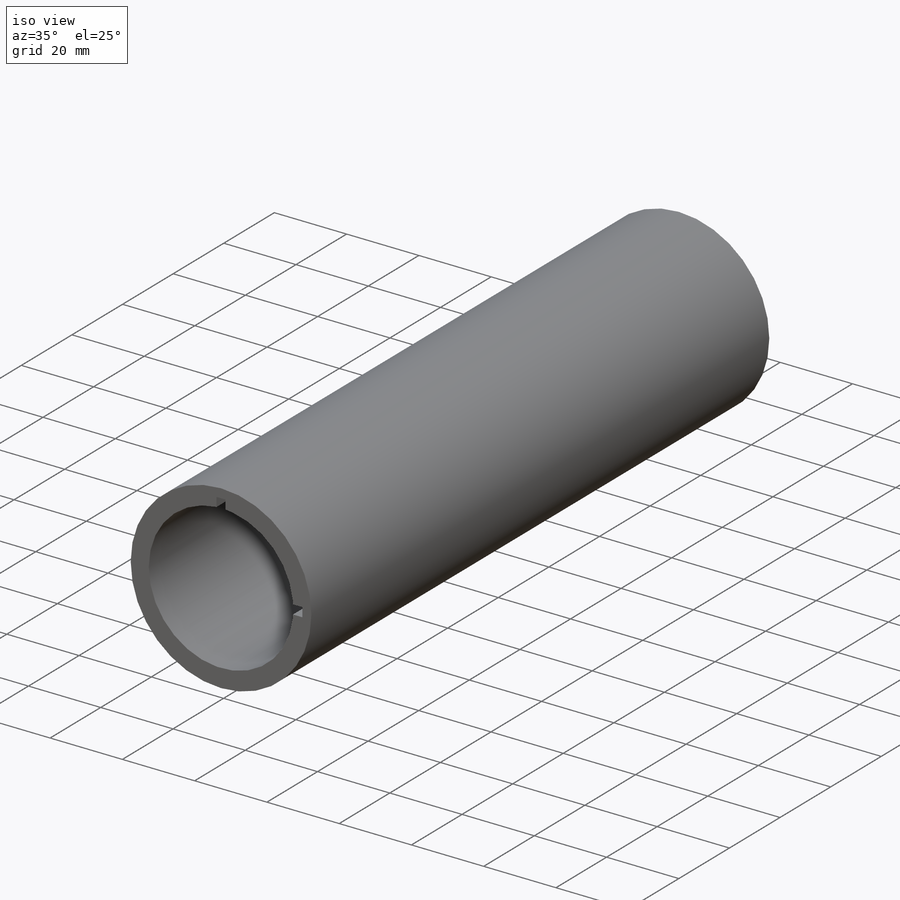
[diagram: iso view]
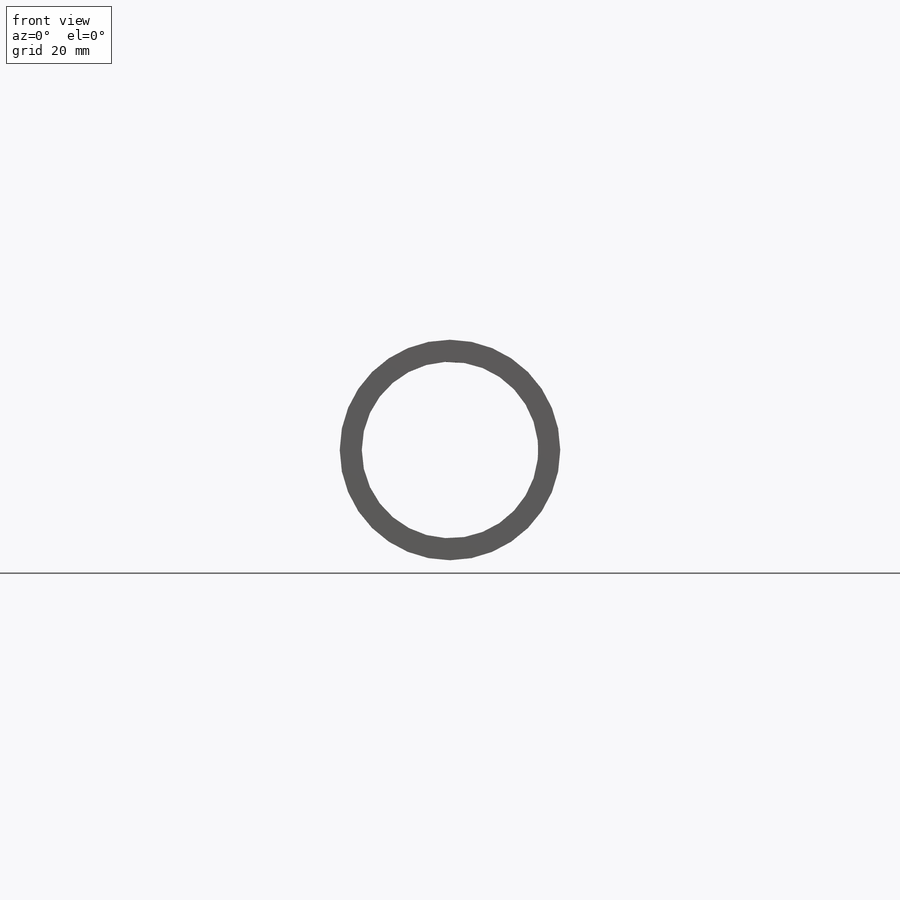
[diagram: front view]
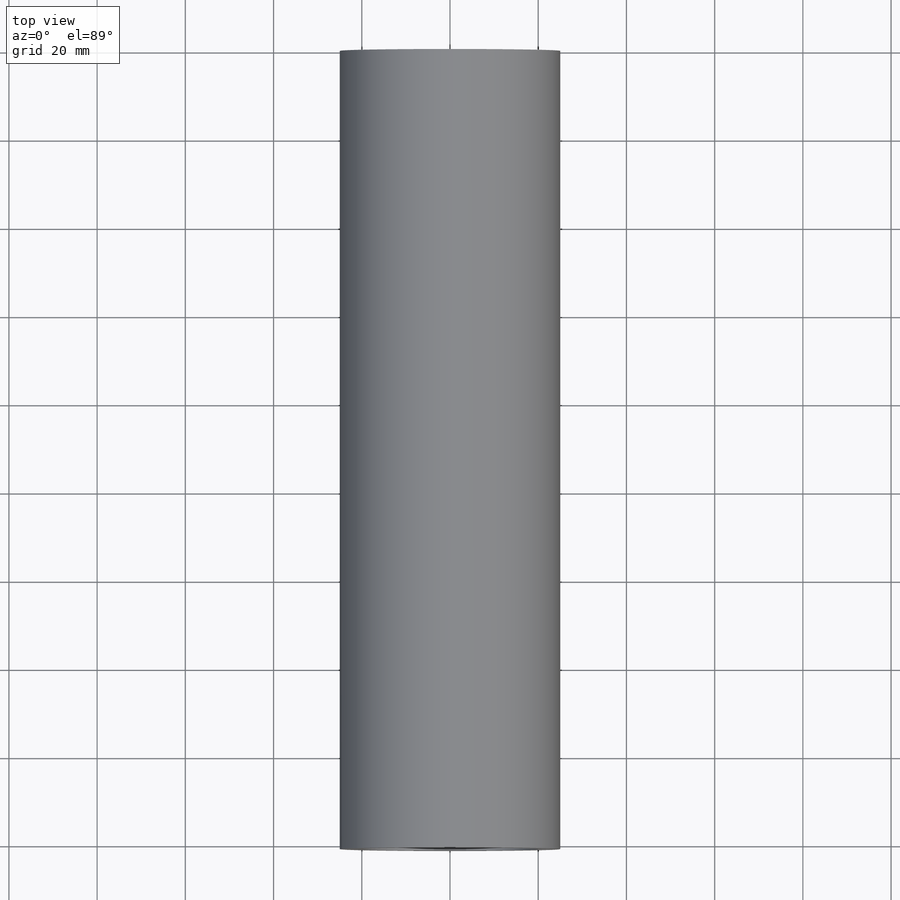
[diagram: top view]
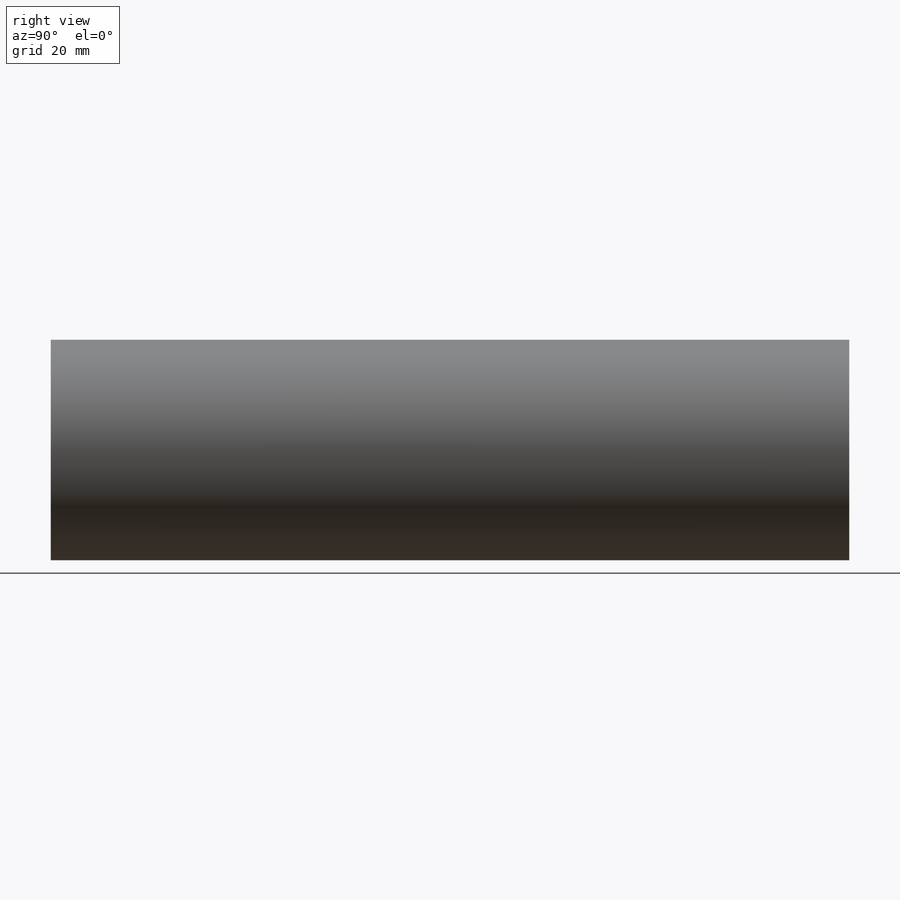
[diagram: right view]
SOLIDWORKS PART (.sldprt)
format: sldprt  version: not decoded by parser v0  size: 169,984 bytes
history: native  units: mm
features: sketch x2, material x1, extrude x1, plane x1, cut_extrude x1, pattern_circular x1 (+11 scaffold rows collapsed)
feature tree (18):
  scaffold x11  (default folders/planes/origin — collapsed)
  material  "Material <not specified>"
  sketch  "Sketch1"  dims[D1=~19.547914mm]
  extrude  "Boss-Extrude1"  Depth=181mm
  plane  "Plane1"  Offset=22.5mm
  sketch  "Sketch5"  dims[D1=2.5mm]
  cut_extrude  "Cut-Extrude2"  Depth=6mm
  pattern_circular  "CirPattern8"  Count=2 Angle=90deg
decode coverage: 5 of 5 modeling features carry decoded parameters
note: ~ marks probable driven/reference dimensions
note: suppression state not decoded; provenance and decode notes live in map.json
